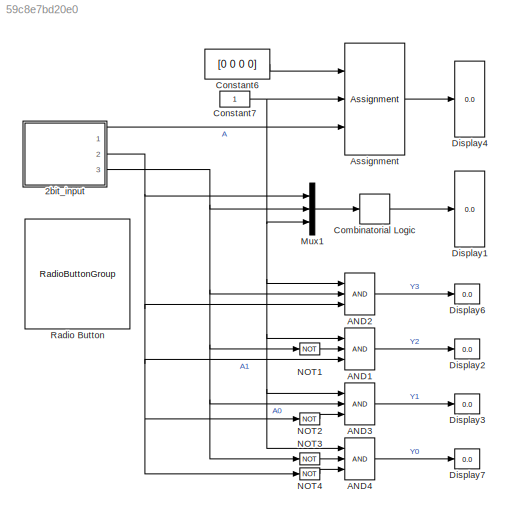
MODEL slx_59c8e7bd20e0
KIND model
CONFIG AbsTol = auto
CONFIG EnableMultiTasking = off
CONFIG FixedStep = 1
CONFIG MaxStep = 1
CONFIG MinStep = auto
CONFIG RelTol = 1e-3
CONFIG SampleTimeConstraint = Unconstrained
CONFIG Solver = FixedStepAuto
CONFIG SolverName = FixedStepAuto
CONFIG StartTime = 0.0
CONFIG StopTime = inf
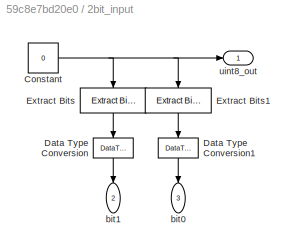
BLOCK [SubSystem] 2bit_input
  Ports = [0, 3]
  RequestExecContextInheritance = off
BLOCK [Constant] 2bit_input/Constant
  OutDataTypeStr = uint8
  OutMax = 3
  OutMin = 0
  Value = 0
BLOCK [DataTypeConversion] 2bit_input/Data Type Conversion
  OutDataTypeStr = boolean
  RndMeth = Floor
  SaturateOnIntegerOverflow = off
BLOCK [DataTypeConversion] 2bit_input/Data Type Conversion1
  OutDataTypeStr = boolean
  RndMeth = Floor
  SaturateOnIntegerOverflow = off
BLOCK [Reference] 2bit_input/Extract Bits  REF=simulink/Logic and Bit
Operations/Extract Bits
  Ports = [1, 1]
  SourceBlock = simulink/Logic and Bit\nOperations/Extract Bits
  SourceProductBaseCode = SL
  SourceProductName = Simulink
  SourceType = Extract Bits
BLOCK [Reference] 2bit_input/Extract Bits1  REF=simulink/Logic and Bit
Operations/Extract Bits
  Ports = [1, 1]
  SourceBlock = simulink/Logic and Bit\nOperations/Extract Bits
  SourceProductBaseCode = SL
  SourceProductName = Simulink
  SourceType = Extract Bits
BLOCK [Outport] 2bit_input/bit0
  IconDisplay = Port number
  Port = 3
BLOCK [Outport] 2bit_input/bit1
  IconDisplay = Port number
  Port = 2
BLOCK [Outport] 2bit_input/uint8_out
  IconDisplay = Port number
BLOCK [Logic] AND1
  AllPortsSameDT = off
  IconShape = distinctive
  Inputs = 3
  OutDataTypeStr = boolean
  Ports = [3, 1]
BLOCK [Logic] AND2
  AllPortsSameDT = off
  IconShape = distinctive
  Inputs = 3
  OutDataTypeStr = boolean
  Ports = [3, 1]
BLOCK [Logic] AND3
  AllPortsSameDT = off
  IconShape = distinctive
  Inputs = 3
  OutDataTypeStr = boolean
  Ports = [3, 1]
BLOCK [Logic] AND4
  AllPortsSameDT = off
  IconShape = distinctive
  Inputs = 3
  OutDataTypeStr = boolean
  Ports = [3, 1]
BLOCK [Assignment] Assignment
  DiagnosticForDimensions = Warning
  IndexMode = Zero-based
  IndexOptions = Index vector (port)
  Indices = 1
  OutputSizes = 1
  Ports = [3, 1]
BLOCK [CombinatorialLogic] Combinatorial Logic
  TruthTable = [0 0 0 0; 0 0 0 1; 0 0 0 0; 0 0 1 0; 0 0 0 0; 0 1 0 0; 0 0 0 0; 1 0 0 0]
BLOCK [Constant] Constant6
  OutDataTypeStr = boolean
  Value = [0 0 0 0]
BLOCK [Constant] Constant7
  OutDataTypeStr = boolean
BLOCK [Display] Display1
  Decimation = 1
  Ports = [1]
BLOCK [Display] Display2
  Decimation = 1
  Ports = [1]
BLOCK [Display] Display3
  Decimation = 1
  Ports = [1]
BLOCK [Display] Display4
  Decimation = 1
  Ports = [1]
BLOCK [Display] Display6
  Decimation = 1
  Ports = [1]
BLOCK [Display] Display7
  Decimation = 1
  Ports = [1]
BLOCK [Mux] Mux1
  DisplayOption = bar
  Inputs = 3
  Ports = [3, 1]
BLOCK [Logic] NOT1
  AllPortsSameDT = off
  IconShape = distinctive
  Operator = NOT
  OutDataTypeStr = boolean
  Ports = [1, 1]
BLOCK [Logic] NOT2
  AllPortsSameDT = off
  IconShape = distinctive
  Operator = NOT
  OutDataTypeStr = boolean
  Ports = [1, 1]
BLOCK [Logic] NOT3
  AllPortsSameDT = off
  IconShape = distinctive
  Operator = NOT
  OutDataTypeStr = boolean
  Ports = [1, 1]
BLOCK [Logic] NOT4
  AllPortsSameDT = off
  IconShape = distinctive
  Operator = NOT
  OutDataTypeStr = boolean
  Ports = [1, 1]
BLOCK [RadioButtonGroup] Radio Button
  SelectedLabel = 0
NET 2bit_input/Constant:1 -> 2bit_input/Extract Bits1:1, 2bit_input/Extract Bits:1, 2bit_input/uint8_out:1
LINE 2bit_input/Data Type Conversion1:1 -> 2bit_input/bit0:1
LINE 2bit_input/Data Type Conversion:1 -> 2bit_input/bit1:1
LINE 2bit_input/Extract Bits1:1 -> 2bit_input/Data Type Conversion1:1
LINE 2bit_input/Extract Bits:1 -> 2bit_input/Data Type Conversion:1
LINE 2bit_input:1 -> Assignment:3
NET 2bit_input:2 -> AND1:3, AND2:3, Mux1:1, NOT2:1, NOT4:1
NET 2bit_input:3 -> AND2:2, AND3:2, Mux1:2, NOT1:1, NOT3:1
LINE AND1:1 -> Display2:1
LINE AND2:1 -> Display6:1
LINE AND3:1 -> Display3:1
LINE AND4:1 -> Display7:1
LINE Assignment:1 -> Display4:1
LINE Combinatorial Logic:1 -> Display1:1
LINE Constant6:1 -> Assignment:1
NET Constant7:1 -> AND1:1, AND2:1, AND3:1, AND4:1, Assignment:2, Mux1:3
LINE Mux1:1 -> Combinatorial Logic:1
LINE NOT1:1 -> AND1:2
LINE NOT2:1 -> AND3:3
LINE NOT3:1 -> AND4:2
LINE NOT4:1 -> AND4:3
note: NET lines group one-source signal fan-out (src -> all destinations, sorted); 1:1 wires keep LINE
